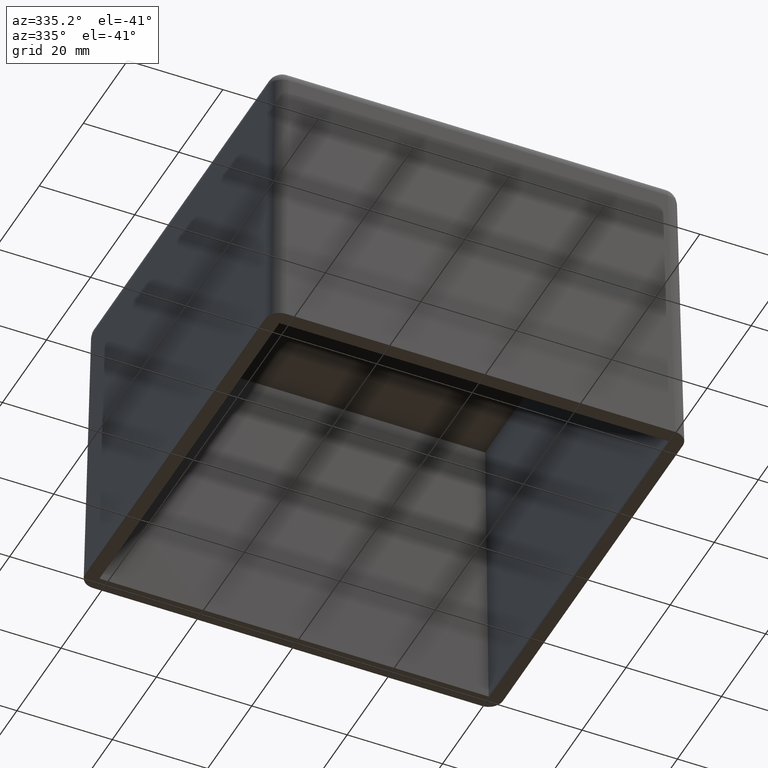
[diagram: clean part render]
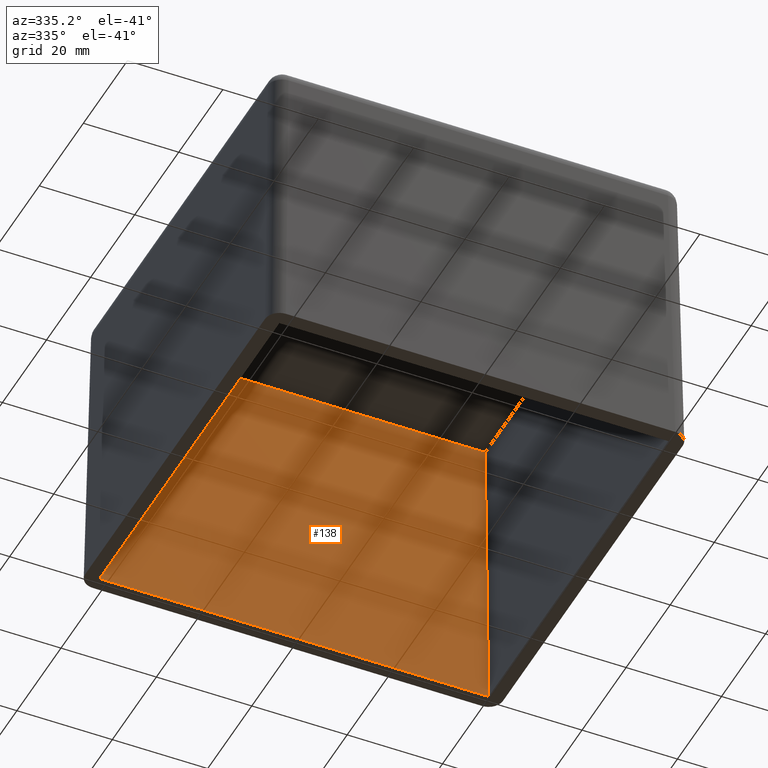
[diagram: same view with one face highlighted and labeled with its STEP entity id]
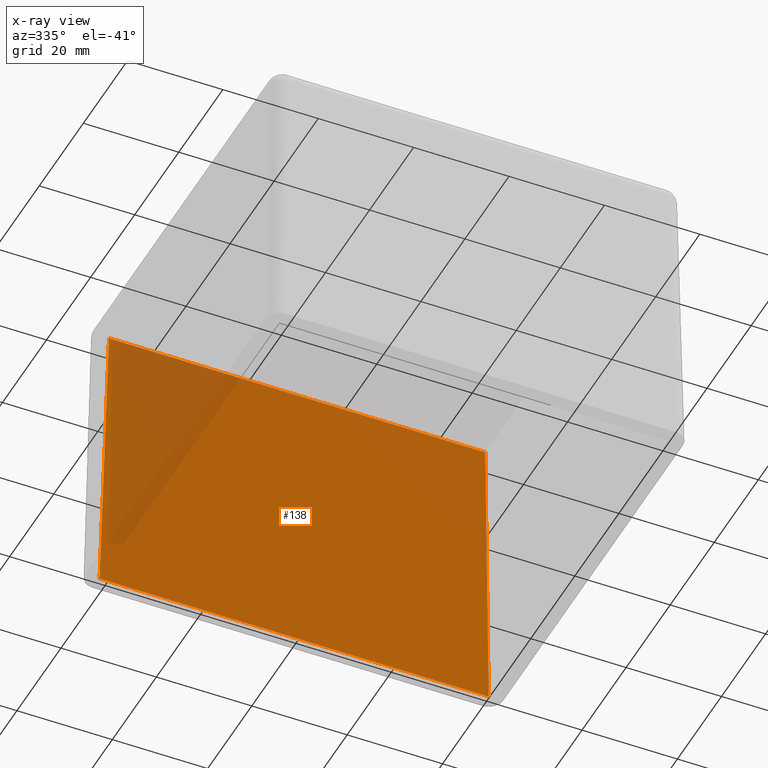
[diagram: x-ray of the same camera — body ghosted, the highlighted face saturated]
A machine part, auxiliary view. The second image highlights one B-rep face of the part: STEP entity #138.
The next image is the same camera in x-ray: the body ghosted, the highlighted face saturated — about 16% of this face is hidden behind the body in this view.
In plain terms, the highlighted planar face has unit normal (0, 0.9997, 0.0227).
Its self-contained STEP definition (entity closure, byte-faithful):
#138 = ADVANCED_FACE( '', ( #291 ), #292, .F. );
#291 = FACE_OUTER_BOUND( '', #469, .T. );
#292 = PLANE( '', #470 );
#469 = EDGE_LOOP( '', ( #1047, #1048, #1049, #1050 ) );
#470 = AXIS2_PLACEMENT_3D( '', #1051, #1052, #1053 );
#1047 = ORIENTED_EDGE( '', *, *, #1335, .F. );
#1048 = ORIENTED_EDGE( '', *, *, #1336, .F. );
#1049 = ORIENTED_EDGE( '', *, *, #1332, .T. );
#1050 = ORIENTED_EDGE( '', *, *, #1337, .T. );
#1051 = CARTESIAN_POINT( '', ( -40.8000000000000, 40.8000000000000, 0.000000000000000 ) );
#1052 = DIRECTION( '', ( 0.000000000000000, 0.999742609322698, 0.0226873335727814 ) );
#1053 = DIRECTION( '', ( 0.000000000000000, -0.0226873335727814, 0.999742609322698 ) );
#1332 = EDGE_CURVE( '', #1610, #1607, #1611, .F. );
#1335 = EDGE_CURVE( '', #1615, #1616, #1617, .F. );
#1336 = EDGE_CURVE( '', #1610, #1615, #1618, .T. );
#1337 = EDGE_CURVE( '', #1607, #1616, #1619, .T. );
#1607 = VERTEX_POINT( '', #2178 );
#1610 = VERTEX_POINT( '', #2182 );
#1611 = LINE( '', #2183, #2184 );
#1615 = VERTEX_POINT( '', #2190 );
#1616 = VERTEX_POINT( '', #2191 );
#1617 = LINE( '', #2192, #2193 );
#1618 = LINE( '', #2194, #2195 );
#1619 = LINE( '', #2196, #2197 );
#2178 = CARTESIAN_POINT( '', ( -39.4384095249385, 39.4384095249385, 60.0000000000000 ) );
#2182 = CARTESIAN_POINT( '', ( 39.4384095249385, 39.4384095249385, 60.0000000000000 ) );
#2183 = CARTESIAN_POINT( '', ( -40.8000000000000, 39.4384095249385, 60.0000000000000 ) );
#2184 = VECTOR( '', #2439, 1000.00000000000 );
#2190 = CARTESIAN_POINT( '', ( 40.8000000000000, 40.8000000000000, 0.000000000000000 ) );
#2191 = CARTESIAN_POINT( '', ( -40.8000000000000, 40.8000000000000, 0.000000000000000 ) );
#2192 = CARTESIAN_POINT( '', ( -40.8000000000000, 40.8000000000000, 0.000000000000000 ) );
#2193 = VECTOR( '', #2442, 1000.00000000000 );
#2194 = CARTESIAN_POINT( '', ( 40.7580208547613, 40.7580208547613, 1.84985776593998 ) );
#2195 = VECTOR( '', #2443, 1000.00000000000 );
#2196 = CARTESIAN_POINT( '', ( -40.7580208547613, 40.7580208547613, 1.84985776593998 ) );
#2197 = VECTOR( '', #2444, 1000.00000000000 );
#2439 = DIRECTION( '', ( 1.00000000000000, 0.000000000000000, 0.000000000000000 ) );
#2442 = DIRECTION( '', ( 1.00000000000000, 0.000000000000000, 0.000000000000000 ) );
#2443 = DIRECTION( '', ( 0.0226814970691502, 0.0226814970691502, -0.999485417293021 ) );
#2444 = DIRECTION( '', ( -0.0226814970691502, 0.0226814970691502, -0.999485417293021 ) );